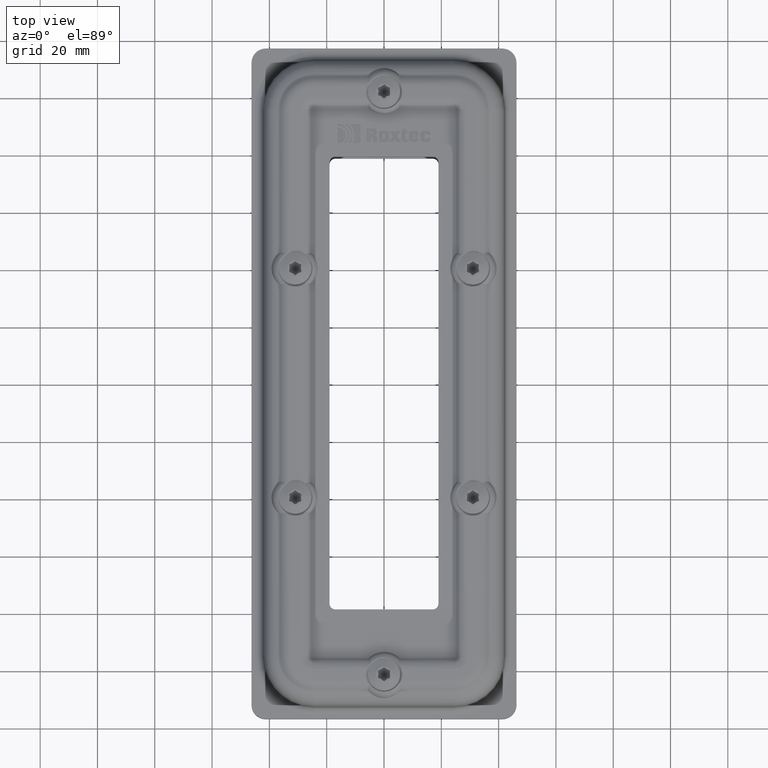
[diagram: clean part render]
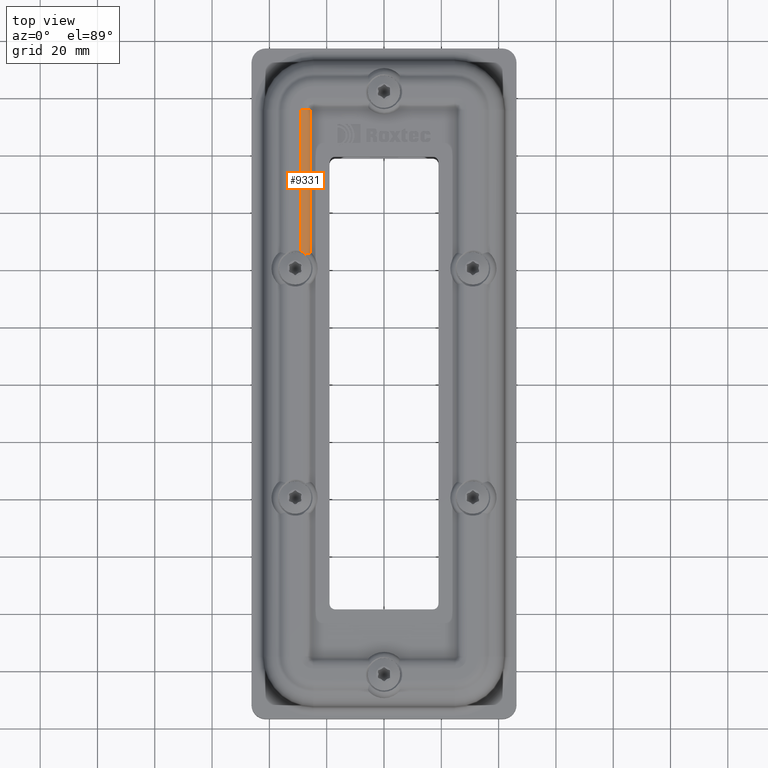
[diagram: same view with one face highlighted and labeled with its STEP entity id]
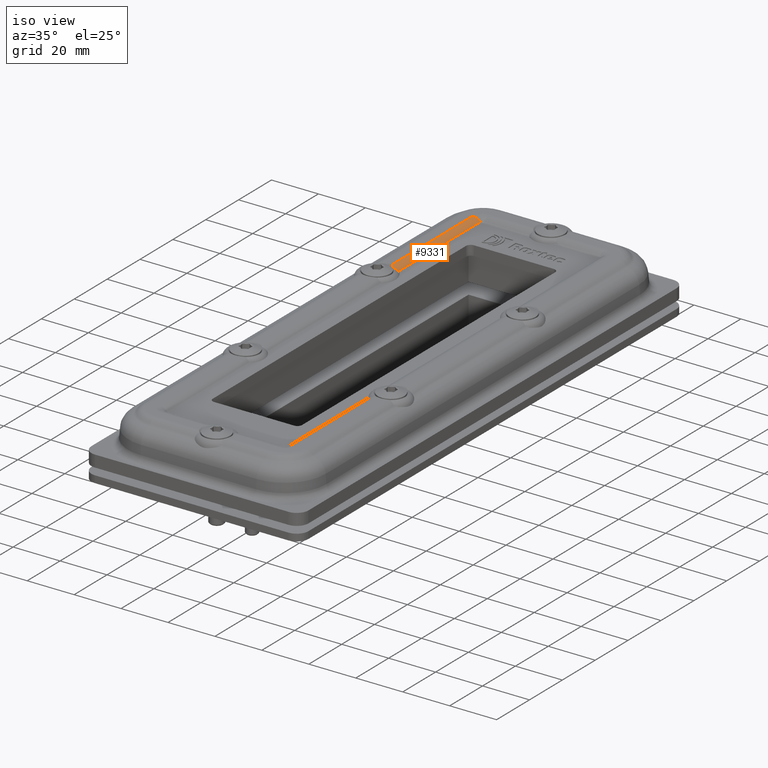
[diagram: same view with one face highlighted and labeled with its STEP entity id]
A machine part, top view. The second image highlights one B-rep face of the part: STEP entity #9331.
A second angle (iso view) of the same face is appended — the face is thin or edge-on in the first view.
In plain terms, the highlighted cylindrical surface (edge-blend (fillet) strip) has radius 4.5 mm, axis along (0, 1, 0).
Its self-contained STEP definition (entity closure, byte-faithful):
#736=FACE_OUTER_BOUND('',#1314,.T.);
#1314=EDGE_LOOP('',(#7634,#7635,#7636,#7637,#7638));
#1776=B_SPLINE_CURVE_WITH_KNOTS('',3,(#16520,#16521,#16522,#16523,#16524,
#16525),.UNSPECIFIED.,.F.,.F.,(4,2,4),(0.163076925663923,0.270883965128733,
0.376808399426039),.UNSPECIFIED.);
#1788=B_SPLINE_CURVE_WITH_KNOTS('',3,(#16641,#16642,#16643,#16644,#16645,
#16646,#16647,#16648),.UNSPECIFIED.,.F.,.F.,(4,2,2,4),(0.939825834586194,
0.940978863420323,1.0515544935467,1.11544096082362),.UNSPECIFIED.);
#2333=LINE('',#16797,#2989);
#2334=LINE('',#16799,#2990);
#2989=VECTOR('',#11973,4.94050083194732);
#2990=VECTOR('',#11974,4.968218596321);
#3422=CIRCLE('',#10083,0.45);
#4241=VERTEX_POINT('',#16486);
#4243=VERTEX_POINT('',#16507);
#4257=VERTEX_POINT('',#16640);
#4278=VERTEX_POINT('',#16796);
#4279=VERTEX_POINT('',#16798);
#5416=EDGE_CURVE('',#4241,#4243,#1776,.T.);
#5438=EDGE_CURVE('',#4257,#4241,#1788,.T.);
#5474=EDGE_CURVE('',#4257,#4278,#2333,.T.);
#5475=EDGE_CURVE('',#4243,#4279,#2334,.T.);
#5476=EDGE_CURVE('',#4279,#4278,#3422,.F.);
#7634=ORIENTED_EDGE('',*,*,#5474,.F.);
#7635=ORIENTED_EDGE('',*,*,#5438,.T.);
#7636=ORIENTED_EDGE('',*,*,#5416,.T.);
#7637=ORIENTED_EDGE('',*,*,#5475,.T.);
#7638=ORIENTED_EDGE('',*,*,#5476,.T.);
#8910=CYLINDRICAL_SURFACE('',#10082,0.45);
#9331=ADVANCED_FACE('',(#736),#8910,.T.);
#10082=AXIS2_PLACEMENT_3D('',#16795,#11971,#11972);
#10083=AXIS2_PLACEMENT_3D('',#16800,#11975,#11976);
#11971=DIRECTION('center_axis',(3.3306690738755E-16,1.,4.69422931792557E-16));
#11972=DIRECTION('ref_axis',(-1.,3.3306690738755E-16,7.90262916833879E-17));
#11973=DIRECTION('',(3.3306690738755E-16,1.,4.69422931792557E-16));
#11974=DIRECTION('',(3.3306690738755E-16,1.,4.69422931792557E-16));
#11975=DIRECTION('center_axis',(3.3306690738755E-16,1.,4.69422931792557E-16));
#11976=DIRECTION('ref_axis',(7.90262916833879E-17,-4.69422931792557E-16,
1.));
#16486=CARTESIAN_POINT('',(-2.74701908128533,4.49746452463546,0.574972525813558));
#16507=CARTESIAN_POINT('',(-2.5736357207156,4.54290677238596,0.464999999999994));
#16520=CARTESIAN_POINT('Ctrl Pts',(-2.74701908128531,4.49746452463549,0.574972525813529));
#16521=CARTESIAN_POINT('Ctrl Pts',(-2.7149792381432,4.50893445969117,0.563815838885198));
#16522=CARTESIAN_POINT('Ctrl Pts',(-2.68377231849376,4.51865306436463,0.548884759962162));
#16523=CARTESIAN_POINT('Ctrl Pts',(-2.62512644781002,4.53398989241183,0.511734709192604));
#16524=CARTESIAN_POINT('Ctrl Pts',(-2.59803668492203,4.53957187057058,0.48989396278109));
#16525=CARTESIAN_POINT('Ctrl Pts',(-2.5736357207156,4.54290677238596,0.464999999999993));
#16640=CARTESIAN_POINT('',(-2.895,4.60099916805268,0.600000000000004));
#16641=CARTESIAN_POINT('Ctrl Pts',(-2.89500000000001,4.60099916805264,0.599999999999968));
#16642=CARTESIAN_POINT('Ctrl Pts',(-2.89463582102303,4.60087494709819,0.599999999999968));
#16643=CARTESIAN_POINT('Ctrl Pts',(-2.89427210370401,4.60075004698113,0.599999557908707));
#16644=CARTESIAN_POINT('Ctrl Pts',(-2.85907316145572,4.58858206598534,0.599914208362583));
#16645=CARTESIAN_POINT('Ctrl Pts',(-2.82496980026314,4.56873647724481,0.595584394452284));
#16646=CARTESIAN_POINT('Ctrl Pts',(-2.77756583881694,4.52975680521362,0.584771460956522));
#16647=CARTESIAN_POINT('Ctrl Pts',(-2.76149560269738,4.51391746350491,0.58001343742128));
#16648=CARTESIAN_POINT('Ctrl Pts',(-2.74701908128538,4.49746452463542,0.574972525813552));
#16795=CARTESIAN_POINT('Origin',(-2.895,-9.5415,0.149999999999961));
#16796=CARTESIAN_POINT('',(-2.89500000000005,9.5415,0.599999999999998));
#16797=CARTESIAN_POINT('',(-2.895,4.60099916805268,0.600000000000004));
#16798=CARTESIAN_POINT('',(-2.57363572071567,9.5415,0.46500000000007));
#16799=CARTESIAN_POINT('',(-2.57363572071558,4.573281403679,0.46500000000001));
#16800=CARTESIAN_POINT('Origin',(-2.89500000000004,9.5415,0.150000000000051));